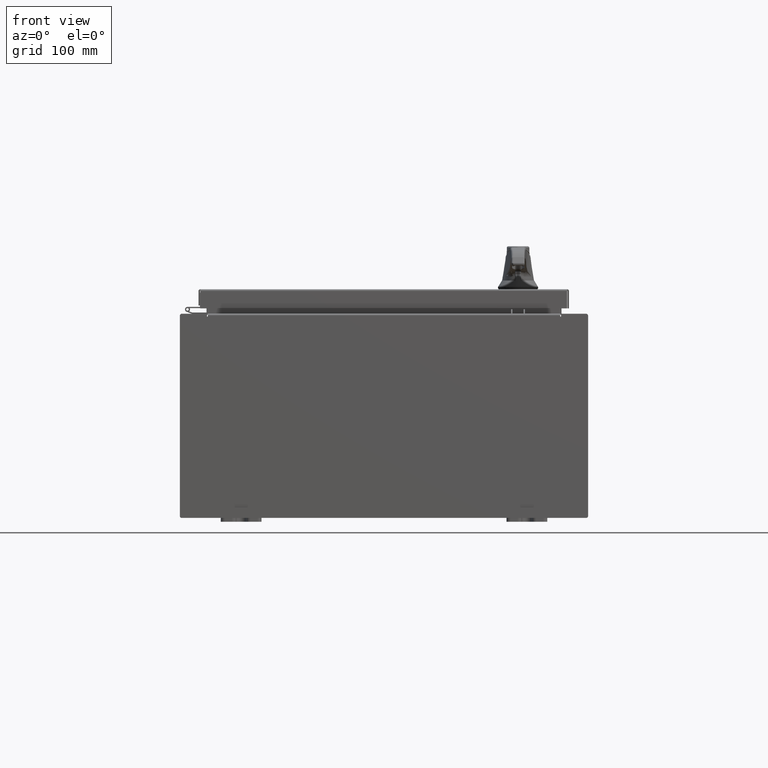
[diagram: clean part render]
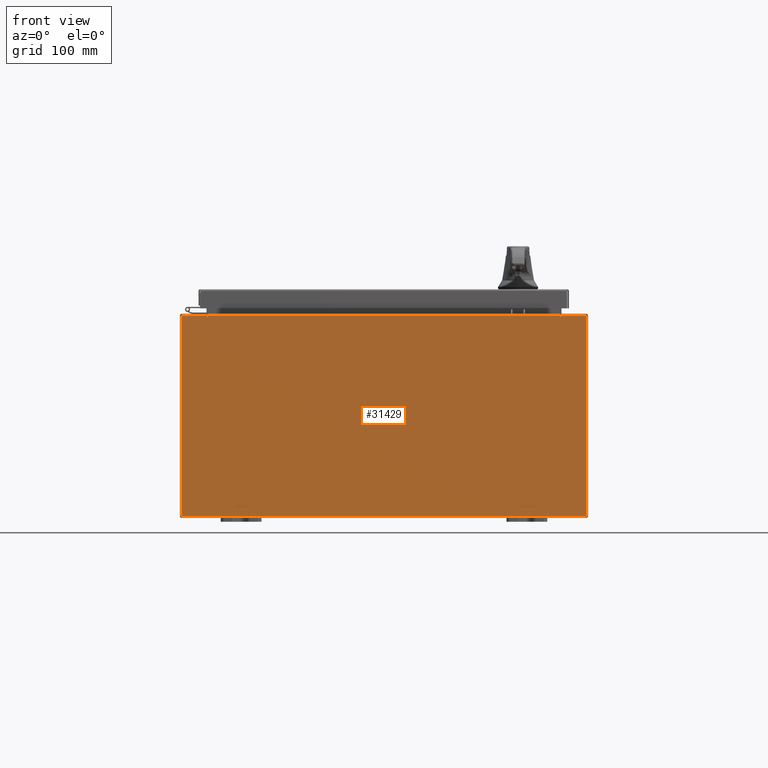
[diagram: same view with one face highlighted and labeled with its STEP entity id]
A machine part, front view. The second image highlights one B-rep face of the part: STEP entity #31429.
In plain terms, the highlighted planar face has unit normal (-0, 1, -0).
Its self-contained STEP definition (entity closure, byte-faithful):
#2546 = EDGE_CURVE ( 'NONE', #65888, #74337, #67268, .T. ) ;
#2665 = LINE ( 'NONE', #75364, #80741 ) ;
#3915 = CARTESIAN_POINT ( 'NONE',  ( 8.637200000000000000, 0.0000000000000000000, 4.874950000000000100 ) ) ;
#6158 = VECTOR ( 'NONE', #101754, 39.37007874015748100 ) ;
#6856 = CARTESIAN_POINT ( 'NONE',  ( -9.925300000000000000, 0.0000000000000000000, -4.925300000000000000 ) ) ;
#7120 = FACE_OUTER_BOUND ( 'NONE', #24987, .T. ) ;
#8543 = AXIS2_PLACEMENT_3D ( 'NONE', #70674, #18292, #79463 ) ;
#8570 = VERTEX_POINT ( 'NONE', #47482 ) ;
#9511 = CARTESIAN_POINT ( 'NONE',  ( -9.925300000000000000, 0.0000000000000000000, 4.925300000000000000 ) ) ;
#10621 = AXIS2_PLACEMENT_3D ( 'NONE', #72863, #20504, #81706 ) ;
#14836 = EDGE_CURVE ( 'NONE', #104966, #99442, #55400, .T. ) ;
#17587 = PLANE ( 'NONE',  #39389 ) ;
#17623 = CARTESIAN_POINT ( 'NONE',  ( -9.925300000000000000, 0.0000000000000000000, -4.925300000000000000 ) ) ;
#18292 = DIRECTION ( 'NONE',  ( -0.0000000000000000000, 1.000000000000000000, -0.0000000000000000000 ) ) ;
#18308 = DIRECTION ( 'NONE',  ( 1.000000000000000000, 0.0000000000000000000, 0.0000000000000000000 ) ) ;
#20097 = CARTESIAN_POINT ( 'NONE',  ( 8.674550000000000000, 0.0000000000000000000, 4.874950000000000100 ) ) ;
#20504 = DIRECTION ( 'NONE',  ( -0.0000000000000000000, 1.000000000000000000, -0.0000000000000000000 ) ) ;
#20568 = LINE ( 'NONE', #104479, #67050 ) ;
#22601 = VECTOR ( 'NONE', #40637, 39.37007874015748100 ) ;
#22755 = ORIENTED_EDGE ( 'NONE', *, *, #87596, .F. ) ;
#23070 = CARTESIAN_POINT ( 'NONE',  ( -9.925300000000000000, 0.0000000000000000000, 4.925300000000000000 ) ) ;
#23526 = VECTOR ( 'NONE', #80808, 39.37007874015748100 ) ;
#24957 = VECTOR ( 'NONE', #18308, 39.37007874015748100 ) ;
#24987 = EDGE_LOOP ( 'NONE', ( #97064, #82153, #62997, #38239, #90837, #22755, #109105, #71717, #67480, #109722, #100640, #75235 ) ) ;
#25045 = CARTESIAN_POINT ( 'NONE',  ( 9.925300000000000000, 0.0000000000000000000, 4.925300000000000000 ) ) ;
#26344 = DIRECTION ( 'NONE',  ( 0.0000000000000000000, -0.0000000000000000000, -1.000000000000000000 ) ) ;
#26395 = DIRECTION ( 'NONE',  ( -1.000000000000000000, -0.0000000000000000000, -0.0000000000000000000 ) ) ;
#26753 = CIRCLE ( 'NONE', #10621, 0.01867500000000003900 ) ;
#27685 = CARTESIAN_POINT ( 'NONE',  ( -8.637199999999996400, -0.0000000000000000000, 4.874950000000000100 ) ) ;
#30461 = LINE ( 'NONE', #34010, #94958 ) ;
#31429 = ADVANCED_FACE ( 'NONE', ( #7120 ), #17587, .F. ) ;
#34010 = CARTESIAN_POINT ( 'NONE',  ( 8.637200000000000000, 0.0000000000000000000, 0.0000000000000000000 ) ) ;
#38239 = ORIENTED_EDGE ( 'NONE', *, *, #71085, .T. ) ;
#39389 = AXIS2_PLACEMENT_3D ( 'NONE', #43547, #78752, #26344 ) ;
#40109 = VECTOR ( 'NONE', #73771, 39.37007874015748100 ) ;
#40637 = DIRECTION ( 'NONE',  ( 1.000000000000000000, 0.0000000000000000000, 0.0000000000000000000 ) ) ;
#43547 = CARTESIAN_POINT ( 'NONE',  ( 0.0000000000000000000, 0.0000000000000000000, 0.0000000000000000000 ) ) ;
#43833 = LINE ( 'NONE', #17623, #90481 ) ;
#47482 = CARTESIAN_POINT ( 'NONE',  ( -9.925300000000000000, 0.0000000000000000000, 4.925300000000000000 ) ) ;
#48131 = EDGE_CURVE ( 'NONE', #91577, #104966, #26753, .T. ) ;
#48132 = LINE ( 'NONE', #9511, #24957 ) ;
#48681 = CARTESIAN_POINT ( 'NONE',  ( 9.925300000000000000, 0.0000000000000000000, 4.925300000000000000 ) ) ;
#49165 = CARTESIAN_POINT ( 'NONE',  ( -8.637200000000000000, -7.171100983368691200E-016, 4.912300000000000100 ) ) ;
#51893 = DIRECTION ( 'NONE',  ( -0.0000000000000000000, -0.0000000000000000000, 1.000000000000000000 ) ) ;
#52640 = VECTOR ( 'NONE', #104109, 39.37007874015748100 ) ;
#55400 = LINE ( 'NONE', #95276, #52640 ) ;
#56185 = CARTESIAN_POINT ( 'NONE',  ( -8.637199999999996400, -0.0000000000000000000, 0.0000000000000000000 ) ) ;
#59434 = VERTEX_POINT ( 'NONE', #89489 ) ;
#62997 = ORIENTED_EDGE ( 'NONE', *, *, #94909, .F. ) ;
#65008 = EDGE_CURVE ( 'NONE', #59434, #74213, #2665, .T. ) ;
#65888 = VERTEX_POINT ( 'NONE', #25045 ) ;
#66098 = LINE ( 'NONE', #56185, #40109 ) ;
#67050 = VECTOR ( 'NONE', #51893, 39.37007874015748100 ) ;
#67268 = LINE ( 'NONE', #48681, #23526 ) ;
#67480 = ORIENTED_EDGE ( 'NONE', *, *, #2546, .T. ) ;
#68985 = VERTEX_POINT ( 'NONE', #87566 ) ;
#69119 = LINE ( 'NONE', #23070, #22601 ) ;
#70533 = VERTEX_POINT ( 'NONE', #6856 ) ;
#70674 = CARTESIAN_POINT ( 'NONE',  ( 8.655875000000000000, 0.0000000000000000000, 4.874950000000000100 ) ) ;
#70779 = EDGE_CURVE ( 'NONE', #8570, #99442, #69119, .T. ) ;
#71085 = EDGE_CURVE ( 'NONE', #68985, #110909, #75925, .T. ) ;
#71717 = ORIENTED_EDGE ( 'NONE', *, *, #75487, .T. ) ;
#72863 = CARTESIAN_POINT ( 'NONE',  ( -8.655874999999996400, 0.0000000000000000000, 4.874950000000000100 ) ) ;
#73111 = EDGE_CURVE ( 'NONE', #80093, #110909, #30461, .T. ) ;
#73771 = DIRECTION ( 'NONE',  ( 0.0000000000000000000, 0.0000000000000000000, -1.000000000000000000 ) ) ;
#74213 = VERTEX_POINT ( 'NONE', #20097 ) ;
#74337 = VERTEX_POINT ( 'NONE', #91641 ) ;
#75235 = ORIENTED_EDGE ( 'NONE', *, *, #70779, .T. ) ;
#75364 = CARTESIAN_POINT ( 'NONE',  ( 8.674549999999683800, -0.0000000000000000000, -5.647877341832623900E-013 ) ) ;
#75487 = EDGE_CURVE ( 'NONE', #59434, #65888, #48132, .T. ) ;
#75925 = LINE ( 'NONE', #49165, #6158 ) ;
#77876 = EDGE_CURVE ( 'NONE', #70533, #8570, #20568, .T. ) ;
#77993 = DIRECTION ( 'NONE',  ( 0.0000000000000000000, 0.0000000000000000000, 1.000000000000000000 ) ) ;
#78752 = DIRECTION ( 'NONE',  ( 0.0000000000000000000, -1.000000000000000000, 0.0000000000000000000 ) ) ;
#79463 = DIRECTION ( 'NONE',  ( 0.0000000000000000000, 0.0000000000000000000, -1.000000000000000000 ) ) ;
#80093 = VERTEX_POINT ( 'NONE', #3915 ) ;
#80741 = VECTOR ( 'NONE', #93068, 39.37007874015748100 ) ;
#80808 = DIRECTION ( 'NONE',  ( 0.0000000000000000000, 0.0000000000000000000, -1.000000000000000000 ) ) ;
#81706 = DIRECTION ( 'NONE',  ( 0.0000000000000000000, 0.0000000000000000000, -1.000000000000000000 ) ) ;
#82153 = ORIENTED_EDGE ( 'NONE', *, *, #48131, .F. ) ;
#85465 = CARTESIAN_POINT ( 'NONE',  ( -8.674549999999996400, 0.0000000000000000000, 4.925300000000000000 ) ) ;
#86159 = CIRCLE ( 'NONE', #8543, 0.01867500000000003900 ) ;
#86208 = EDGE_CURVE ( 'NONE', #74337, #70533, #43833, .T. ) ;
#87566 = CARTESIAN_POINT ( 'NONE',  ( -8.637199999999996400, -7.171100983368691200E-016, 4.912300000000000100 ) ) ;
#87596 = EDGE_CURVE ( 'NONE', #74213, #80093, #86159, .T. ) ;
#89489 = CARTESIAN_POINT ( 'NONE',  ( 8.674550000000001800, 0.0000000000000000000, 4.925300000000000000 ) ) ;
#90481 = VECTOR ( 'NONE', #26395, 39.37007874015748100 ) ;
#90837 = ORIENTED_EDGE ( 'NONE', *, *, #73111, .F. ) ;
#91577 = VERTEX_POINT ( 'NONE', #27685 ) ;
#91641 = CARTESIAN_POINT ( 'NONE',  ( 9.925300000000000000, 0.0000000000000000000, -4.925300000000000000 ) ) ;
#93068 = DIRECTION ( 'NONE',  ( -6.510859170600007400E-014, 0.0000000000000000000, -1.000000000000000000 ) ) ;
#94909 = EDGE_CURVE ( 'NONE', #68985, #91577, #66098, .T. ) ;
#94958 = VECTOR ( 'NONE', #77993, 39.37007874015748100 ) ;
#95276 = CARTESIAN_POINT ( 'NONE',  ( -8.674549999999996400, -0.0000000000000000000, 0.0000000000000000000 ) ) ;
#97064 = ORIENTED_EDGE ( 'NONE', *, *, #14836, .F. ) ;
#99442 = VERTEX_POINT ( 'NONE', #85465 ) ;
#100640 = ORIENTED_EDGE ( 'NONE', *, *, #77876, .T. ) ;
#101754 = DIRECTION ( 'NONE',  ( 1.000000000000000000, 0.0000000000000000000, 0.0000000000000000000 ) ) ;
#103642 = CARTESIAN_POINT ( 'NONE',  ( -8.674549999999996400, 0.0000000000000000000, 4.874950000000000100 ) ) ;
#104109 = DIRECTION ( 'NONE',  ( 0.0000000000000000000, 0.0000000000000000000, 1.000000000000000000 ) ) ;
#104479 = CARTESIAN_POINT ( 'NONE',  ( -9.925300000000000000, 0.0000000000000000000, 4.925300000000000000 ) ) ;
#104966 = VERTEX_POINT ( 'NONE', #103642 ) ;
#109105 = ORIENTED_EDGE ( 'NONE', *, *, #65008, .F. ) ;
#109722 = ORIENTED_EDGE ( 'NONE', *, *, #86208, .T. ) ;
#110804 = CARTESIAN_POINT ( 'NONE',  ( 8.637200000000000000, 0.0000000000000000000, 4.912300000000000100 ) ) ;
#110909 = VERTEX_POINT ( 'NONE', #110804 ) ;